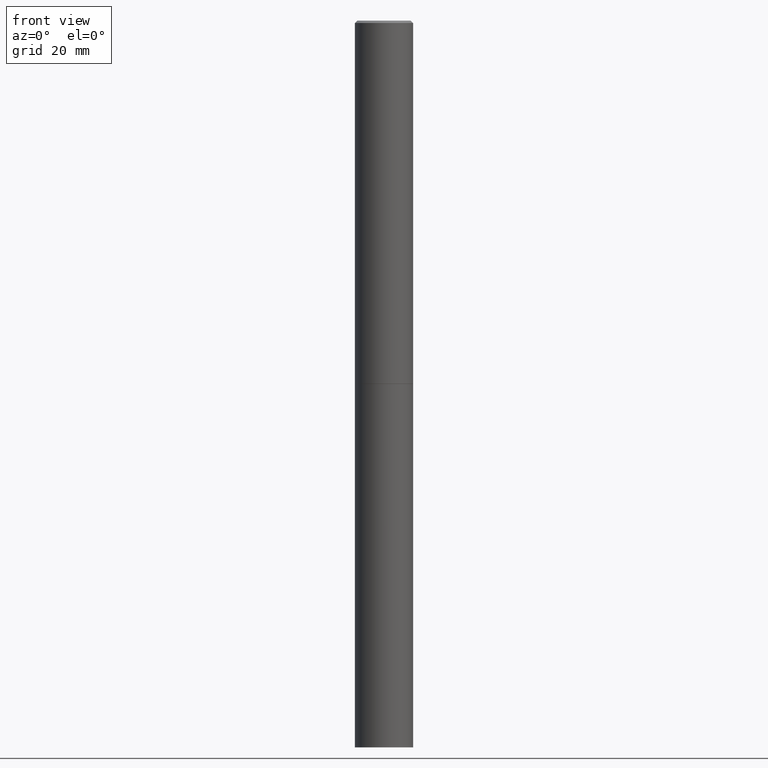
[diagram: clean part render]
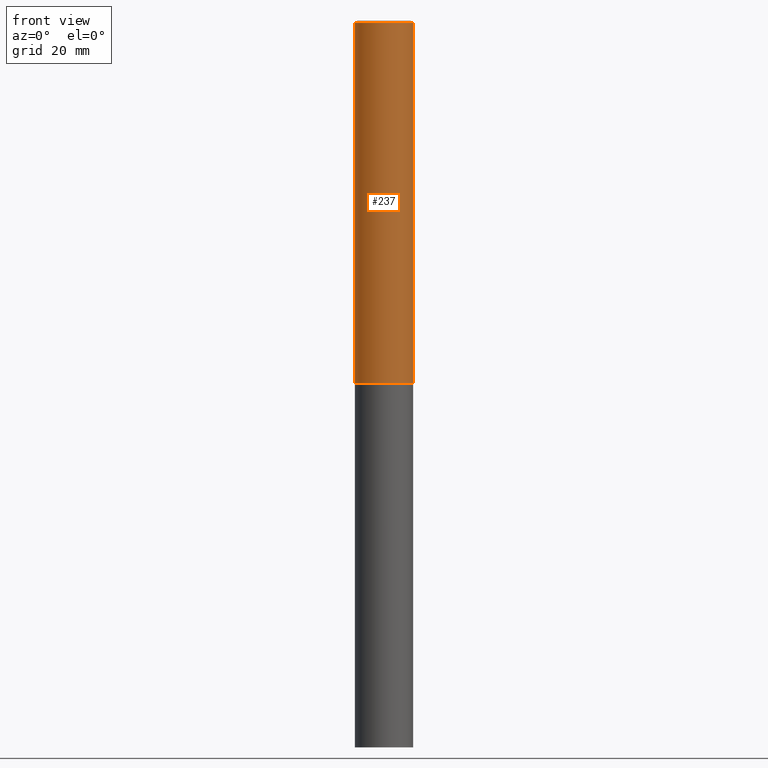
[diagram: same view with one face highlighted and labeled with its STEP entity id]
A machine part, front view. The second image highlights one B-rep face of the part: STEP entity #237.
In plain terms, the highlighted cylindrical surface (edge-blend (fillet) strip) has radius 5.9995 mm, axis along (-0, 0, 1).
Its self-contained STEP definition (entity closure, byte-faithful):
#8 = AXIS2_PLACEMENT_3D ( 'NONE', #260, #288, #29 ) ;
#12 = ORIENTED_EDGE ( 'NONE', *, *, #229, .F. ) ;
#16 = EDGE_CURVE ( 'NONE', #144, #39, #204, .T. ) ;
#18 = DIRECTION ( 'NONE',  ( 1.000000000000000000, -6.982962677686266711E-15, 0.000000000000000000 ) ) ;
#25 = CARTESIAN_POINT ( 'NONE',  ( 0.000000000000000000, 0.000000000000000000, 0.000000000000000000 ) ) ;
#29 = DIRECTION ( 'NONE',  ( 1.000000000000000000, -6.982962677686265133E-15, 0.000000000000000000 ) ) ;
#39 = VERTEX_POINT ( 'NONE', #209 ) ;
#52 = DIRECTION ( 'NONE',  ( -2.445468806185136877E-29, 3.491481338843145188E-15, 1.000000000000000000 ) ) ;
#66 = AXIS2_PLACEMENT_3D ( 'NONE', #25, #108, #221 ) ;
#82 = CARTESIAN_POINT ( 'NONE',  ( -0.2361999999999998545, 1.678301941865355605E-15, -1.161852468318208056E-29 ) ) ;
#88 = VERTEX_POINT ( 'NONE', #135 ) ;
#89 = CIRCLE ( 'NONE', #8, 0.2361999999999999933 ) ;
#101 = DIRECTION ( 'NONE',  ( -2.445468806185136597E-29, 3.491481338843145583E-15, 1.000000000000000000 ) ) ;
#105 = CARTESIAN_POINT ( 'NONE',  ( 0.2361999999999998545, -1.649375784469495145E-15, 1.151752954442999387E-29 ) ) ;
#107 = EDGE_CURVE ( 'NONE', #346, #39, #357, .T. ) ;
#108 = DIRECTION ( 'NONE',  ( -2.445468806185136597E-29, 3.491481338843145583E-15, 1.000000000000000000 ) ) ;
#122 = ORIENTED_EDGE ( 'NONE', *, *, #107, .T. ) ;
#124 = CARTESIAN_POINT ( 'NONE',  ( 4.890937612370292426E-31, -6.982962677686317493E-17, -0.02000000000000007674 ) ) ;
#135 = CARTESIAN_POINT ( 'NONE',  ( -0.2362000000000000210, -3.509515605454727710E-15, -2.951700000000000212 ) ) ;
#139 = CARTESIAN_POINT ( 'NONE',  ( 0.2361999999999999933, -1.195518125233281011E-14, -2.951700000000000212 ) ) ;
#141 = ORIENTED_EDGE ( 'NONE', *, *, #331, .T. ) ;
#144 = VERTEX_POINT ( 'NONE', #192 ) ;
#160 = FACE_OUTER_BOUND ( 'NONE', #327, .T. ) ;
#181 = VECTOR ( 'NONE', #52, 39.37007874015748143 ) ;
#191 = DIRECTION ( 'NONE',  ( -2.445468806185136877E-29, 3.491481338843145188E-15, 1.000000000000000000 ) ) ;
#192 = CARTESIAN_POINT ( 'NONE',  ( -0.2361999999999997712, 1.579546157692631452E-15, -0.02000000000000007674 ) ) ;
#204 = CIRCLE ( 'NONE', #298, 0.2361999999999997712 ) ;
#209 = CARTESIAN_POINT ( 'NONE',  ( 0.2361999999999997712, -1.690279253850497193E-15, -0.02000000000000007674 ) ) ;
#221 = DIRECTION ( 'NONE',  ( 1.000000000000000000, -6.982962677686266711E-15, 4.876176775795935793E-29 ) ) ;
#228 = ORIENTED_EDGE ( 'NONE', *, *, #16, .F. ) ;
#229 = EDGE_CURVE ( 'NONE', #88, #144, #333, .T. ) ;
#237 = ADVANCED_FACE ( 'NONE', ( #160 ), #276, .T. ) ;
#260 = CARTESIAN_POINT ( 'NONE',  ( 7.218290275216666916E-29, -1.030580546786331359E-14, -2.951700000000000212 ) ) ;
#276 = CYLINDRICAL_SURFACE ( 'NONE', #66, 0.2361999999999998545 ) ;
#288 = DIRECTION ( 'NONE',  ( -2.445468806185136597E-29, 3.491481338843145583E-15, 1.000000000000000000 ) ) ;
#291 = VECTOR ( 'NONE', #191, 39.37007874015748143 ) ;
#298 = AXIS2_PLACEMENT_3D ( 'NONE', #124, #101, #18 ) ;
#327 = EDGE_LOOP ( 'NONE', ( #12, #141, #122, #228 ) ) ;
#331 = EDGE_CURVE ( 'NONE', #88, #346, #89, .T. ) ;
#333 = LINE ( 'NONE', #82, #181 ) ;
#346 = VERTEX_POINT ( 'NONE', #139 ) ;
#357 = LINE ( 'NONE', #105, #291 ) ;